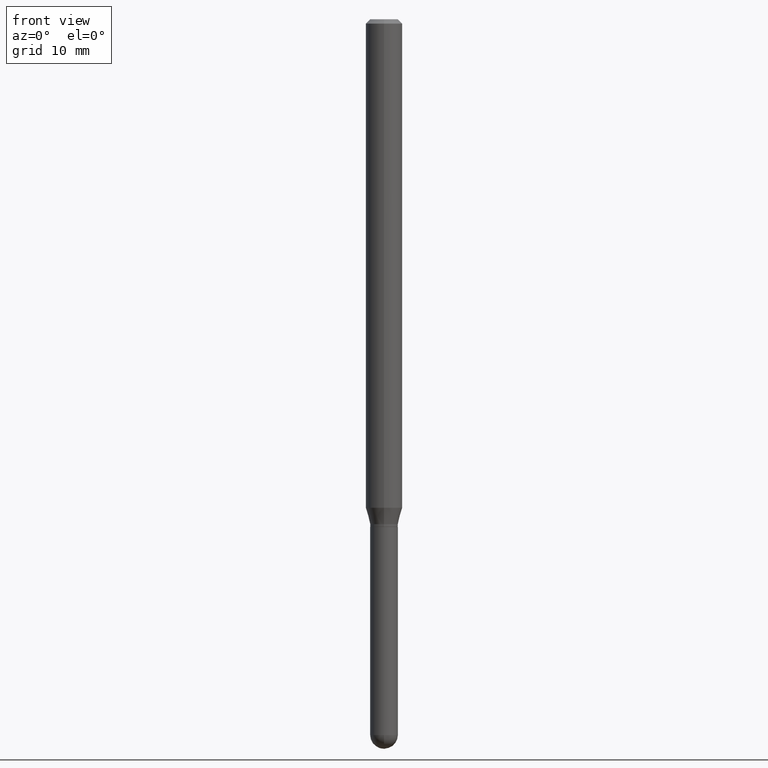
[diagram: clean part render]
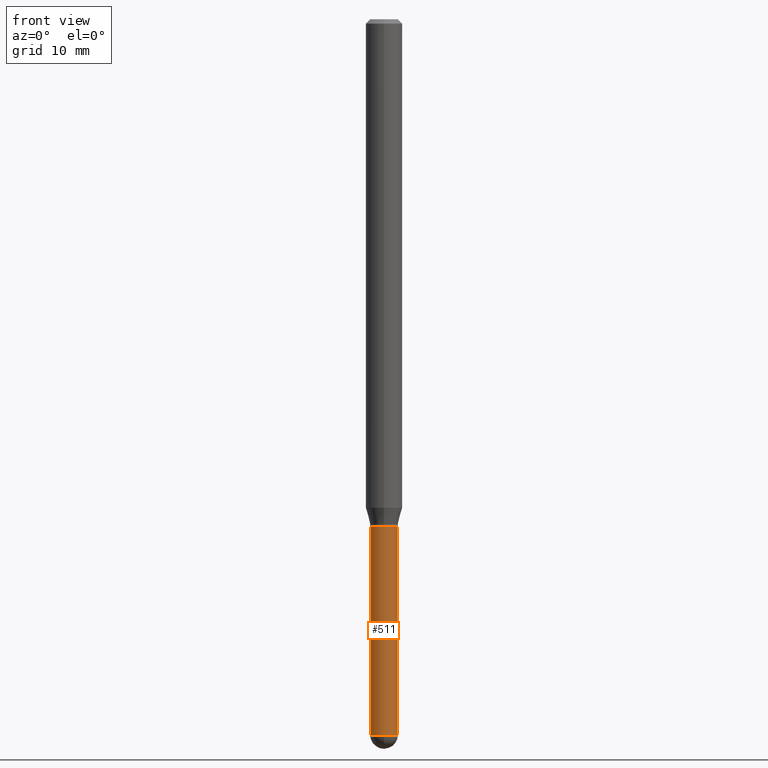
[diagram: same view with one face highlighted and labeled with its STEP entity id]
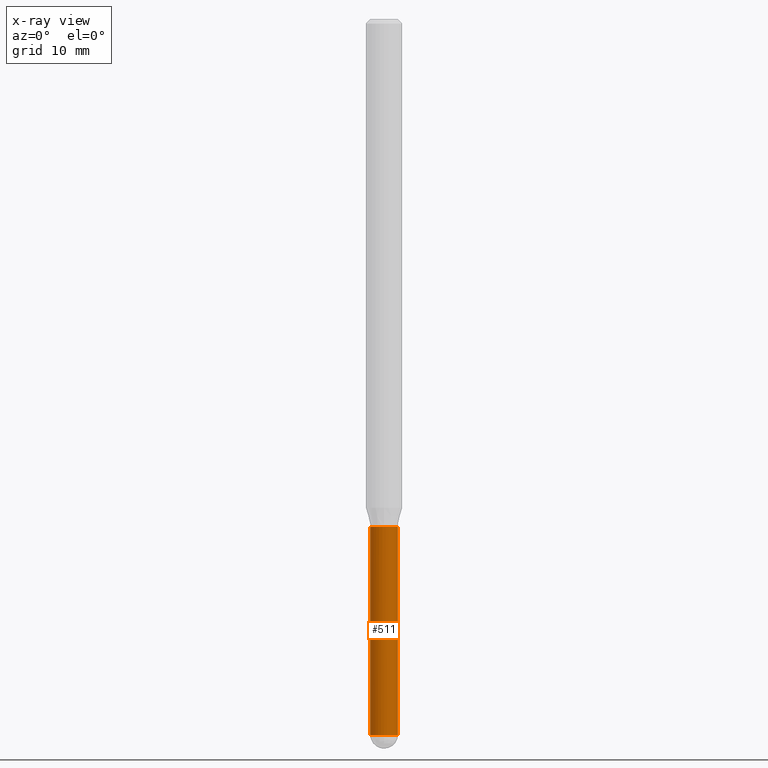
[diagram: x-ray of the same camera — body ghosted, the highlighted face saturated]
A machine part, front view. The second image highlights one B-rep face of the part: STEP entity #511.
The next image is the same camera in x-ray: the body ghosted, the highlighted face saturated — about 0% of this face is hidden behind the body in this view.
In plain terms, the highlighted cylindrical surface (edge-blend (fillet) strip) has radius 1.2065 mm, axis along (-0, 0, 1).
Its self-contained STEP definition (entity closure, byte-faithful):
#7 = CARTESIAN_POINT ( 'NONE',  ( 0.04750000000000000749, -3.316907271900977082E-16, 2.316183968503069432E-30 ) ) ;
#9 = EDGE_CURVE ( 'NONE', #505, #62, #481, .T. ) ;
#21 = ORIENTED_EDGE ( 'NONE', *, *, #263, .T. ) ;
#42 = DIRECTION ( 'NONE',  ( 1.000000000000000000, -6.982962677686280910E-15, 0.000000000000000000 ) ) ;
#45 = EDGE_LOOP ( 'NONE', ( #130, #345, #107, #21, #471 ) ) ;
#62 = VERTEX_POINT ( 'NONE', #65 ) ;
#63 = VECTOR ( 'NONE', #250, 39.37007874015748143 ) ;
#65 = CARTESIAN_POINT ( 'NONE',  ( -0.04749999999999999362, -6.981509957063897703E-15, -1.740000000000000213 ) ) ;
#75 = CARTESIAN_POINT ( 'NONE',  ( 5.997512247169047773E-29, -8.562857983512815004E-15, -2.452500000000000124 ) ) ;
#94 = CARTESIAN_POINT ( 'NONE',  ( 4.255115722762138620E-29, -6.075177529587074600E-15, -1.740000000000000213 ) ) ;
#107 = ORIENTED_EDGE ( 'NONE', *, *, #199, .T. ) ;
#116 = CARTESIAN_POINT ( 'NONE',  ( 0.04750000000000000749, -7.650708483740042707E-15, -2.452500000000000124 ) ) ;
#130 = ORIENTED_EDGE ( 'NONE', *, *, #9, .F. ) ;
#153 = VECTOR ( 'NONE', #486, 39.37007874015748143 ) ;
#163 = DIRECTION ( 'NONE',  ( -2.445468806185136597E-29, 3.491481338843145583E-15, 1.000000000000000000 ) ) ;
#183 = EDGE_CURVE ( 'NONE', #505, #388, #189, .T. ) ;
#189 = CIRCLE ( 'NONE', #477, 0.04750000000000000749 ) ;
#197 = AXIS2_PLACEMENT_3D ( 'NONE', #208, #252, #474 ) ;
#199 = EDGE_CURVE ( 'NONE', #388, #509, #469, .T. ) ;
#208 = CARTESIAN_POINT ( 'NONE',  ( 0.000000000000000000, 0.000000000000000000, 0.000000000000000000 ) ) ;
#220 = LINE ( 'NONE', #7, #63 ) ;
#245 = CYLINDRICAL_SURFACE ( 'NONE', #197, 0.04750000000000000749 ) ;
#250 = DIRECTION ( 'NONE',  ( -2.445468806185136877E-29, 3.491481338843145188E-15, 1.000000000000000000 ) ) ;
#252 = DIRECTION ( 'NONE',  ( -2.445468806185136597E-29, 3.491481338843145583E-15, 1.000000000000000000 ) ) ;
#260 = AXIS2_PLACEMENT_3D ( 'NONE', #75, #386, #336 ) ;
#263 = EDGE_CURVE ( 'NONE', #509, #303, #220, .T. ) ;
#268 = FACE_OUTER_BOUND ( 'NONE', #45, .T. ) ;
#284 = CIRCLE ( 'NONE', #414, 0.04749999999999999362 ) ;
#303 = VERTEX_POINT ( 'NONE', #317 ) ;
#317 = CARTESIAN_POINT ( 'NONE',  ( 0.04749999999999999362, -6.406868256777172111E-15, -1.740000000000000213 ) ) ;
#333 = EDGE_CURVE ( 'NONE', #62, #303, #284, .T. ) ;
#336 = DIRECTION ( 'NONE',  ( 1.000000000000000000, -6.982962677686280910E-15, 0.000000000000000000 ) ) ;
#345 = ORIENTED_EDGE ( 'NONE', *, *, #183, .T. ) ;
#363 = CARTESIAN_POINT ( 'NONE',  ( -3.375077994859866034E-16, -0.04750000000000842437, -2.452499999999999680 ) ) ;
#386 = DIRECTION ( 'NONE',  ( -2.445468806185136597E-29, 3.491481338843145583E-15, 1.000000000000000000 ) ) ;
#388 = VERTEX_POINT ( 'NONE', #363 ) ;
#405 = CARTESIAN_POINT ( 'NONE',  ( -0.04750000000000000749, 3.375077994860476415E-16, -2.336494167871080260E-30 ) ) ;
#414 = AXIS2_PLACEMENT_3D ( 'NONE', #94, #443, #437 ) ;
#437 = DIRECTION ( 'NONE',  ( 1.000000000000000000, -6.982962677686261977E-15, 0.000000000000000000 ) ) ;
#443 = DIRECTION ( 'NONE',  ( -2.445468806185136597E-29, 3.491481338843145583E-15, 1.000000000000000000 ) ) ;
#457 = CARTESIAN_POINT ( 'NONE',  ( -0.04750000000000000749, -6.981509957063897703E-15, -2.452500000000000124 ) ) ;
#469 = CIRCLE ( 'NONE', #260, 0.04750000000000000749 ) ;
#471 = ORIENTED_EDGE ( 'NONE', *, *, #333, .F. ) ;
#474 = DIRECTION ( 'NONE',  ( 1.000000000000000000, -6.982962677686266711E-15, 4.876176775795934672E-29 ) ) ;
#477 = AXIS2_PLACEMENT_3D ( 'NONE', #507, #163, #42 ) ;
#481 = LINE ( 'NONE', #405, #153 ) ;
#486 = DIRECTION ( 'NONE',  ( -2.445468806185136877E-29, 3.491481338843145188E-15, 1.000000000000000000 ) ) ;
#505 = VERTEX_POINT ( 'NONE', #457 ) ;
#507 = CARTESIAN_POINT ( 'NONE',  ( 5.997512247169047773E-29, -8.562857983512815004E-15, -2.452500000000000124 ) ) ;
#509 = VERTEX_POINT ( 'NONE', #116 ) ;
#511 = ADVANCED_FACE ( 'NONE', ( #268 ), #245, .T. ) ;